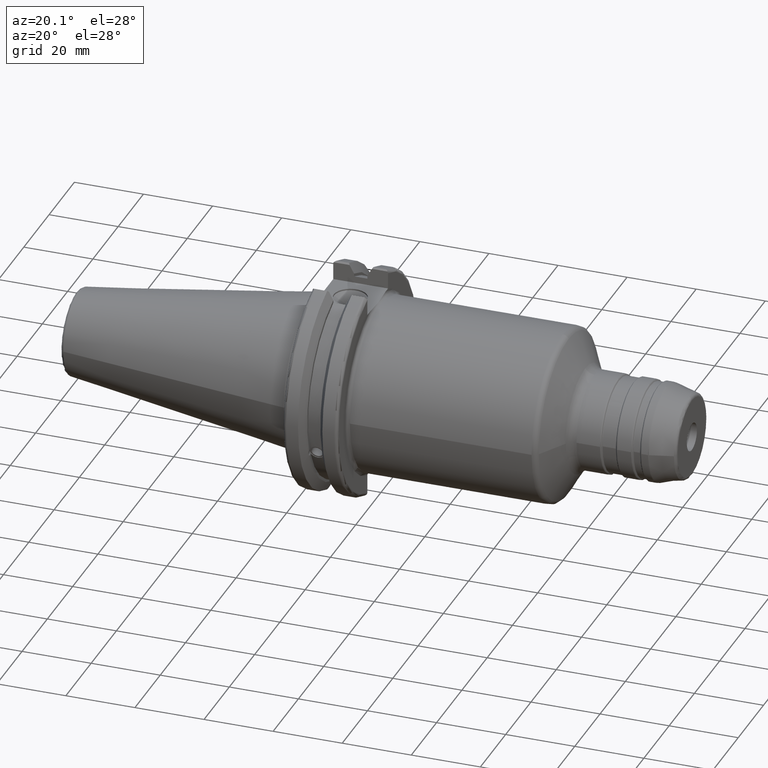
[diagram: clean part render]
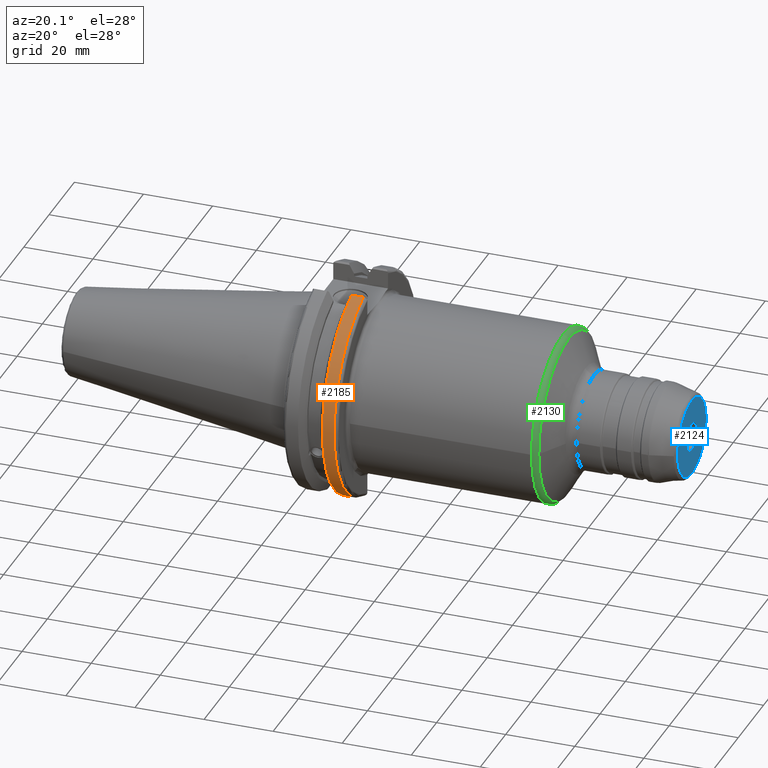
[diagram: same view with three faces highlighted in distinct colors, each labeled with its STEP entity id]
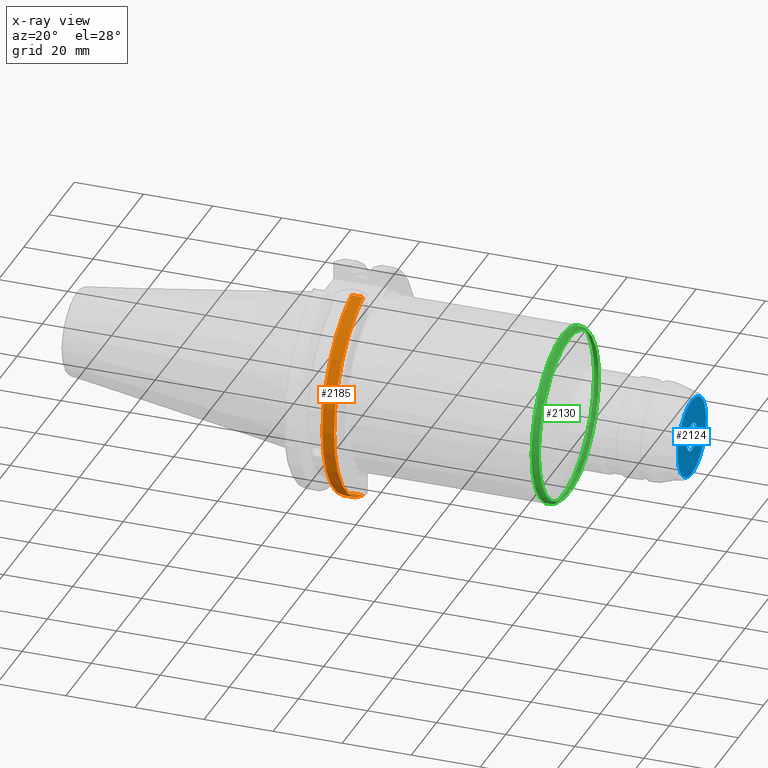
[diagram: x-ray of the same camera — body ghosted, the three highlighted faces saturated]
A machine part, auxiliary view with three faces highlighted in distinct colors.
The next image is the same camera in x-ray (body ghosted, the three faces saturated) — at least one of them is partly hidden behind the body in this view.
Their STEP definitions:

[orange] entity #2185 — the highlighted cylindrical surface (partial cylindrical patch) has radius 31.75 mm, axis along (1, 0, 0).
#256=FACE_OUTER_BOUND('',#377,.T.);
#377=EDGE_LOOP('',(#1945,#1946,#1947,#1948));
#487=LINE('',#4237,#583);
#488=LINE('',#4239,#584);
#583=VECTOR('',#3166,10.);
#584=VECTOR('',#3169,10.);
#712=CIRCLE('',#2403,31.75);
#747=CIRCLE('',#2472,31.75);
#913=VERTEX_POINT('',#3786);
#914=VERTEX_POINT('',#3790);
#986=VERTEX_POINT('',#4093);
#987=VERTEX_POINT('',#4102);
#1203=EDGE_CURVE('',#914,#913,#712,.T.);
#1301=EDGE_CURVE('',#986,#987,#747,.T.);
#1341=EDGE_CURVE('',#987,#913,#487,.T.);
#1342=EDGE_CURVE('',#914,#986,#488,.T.);
#1945=ORIENTED_EDGE('',*,*,#1301,.F.);
#1946=ORIENTED_EDGE('',*,*,#1342,.F.);
#1947=ORIENTED_EDGE('',*,*,#1203,.T.);
#1948=ORIENTED_EDGE('',*,*,#1341,.F.);
#2092=CYLINDRICAL_SURFACE('',#2498,31.75);
#2185=ADVANCED_FACE('',(#256),#2092,.T.);
#2403=AXIS2_PLACEMENT_3D('',#3791,#2928,#2929);
#2472=AXIS2_PLACEMENT_3D('',#4103,#3099,#3100);
#2498=AXIS2_PLACEMENT_3D('',#4238,#3167,#3168);
#2928=DIRECTION('center_axis',(1.,0.,0.));
#2929=DIRECTION('ref_axis',(0.,0.,-1.));
#3099=DIRECTION('center_axis',(1.,0.,0.));
#3100=DIRECTION('ref_axis',(0.,-1.,1.60812264967664E-16));
#3166=DIRECTION('',(-1.,0.,0.));
#3167=DIRECTION('center_axis',(1.,0.,0.));
#3168=DIRECTION('ref_axis',(0.,-1.,1.22464679914735E-16));
#3169=DIRECTION('',(1.,0.,0.));
#3786=CARTESIAN_POINT('',(14.6602667690756,-8.67204822802686,-30.5427254764662));
#3790=CARTESIAN_POINT('',(14.6602667690756,-8.67204822802685,30.5427254764662));
#3791=CARTESIAN_POINT('Origin',(14.6602667690756,0.,0.));
#4093=CARTESIAN_POINT('',(18.05,-8.67204822802685,30.5427254764662));
#4102=CARTESIAN_POINT('',(18.05,-8.67204822802686,-30.5427254764662));
#4103=CARTESIAN_POINT('Origin',(18.05,0.,0.));
#4237=CARTESIAN_POINT('',(16.8551333845378,-8.67204822802686,-30.5427254764662));
#4238=CARTESIAN_POINT('Origin',(16.8551333845378,0.,0.));
#4239=CARTESIAN_POINT('',(16.8551333845378,-8.67204822802685,30.5427254764662));

[blue] entity #2124 — the highlighted planar face has unit normal (1, 0, 0).
#49=PLANE('',#2334);
#104=FACE_BOUND('',#306,.T.);
#195=FACE_OUTER_BOUND('',#305,.T.);
#305=EDGE_LOOP('',(#1559,#1560));
#306=EDGE_LOOP('',(#1561,#1562));
#672=CIRCLE('',#2331,11.232673012021);
#674=CIRCLE('',#2333,11.232673012021);
#675=CIRCLE('',#2335,4.00000000000001);
#676=CIRCLE('',#2336,4.00000000000001);
#850=VERTEX_POINT('',#3518);
#851=VERTEX_POINT('',#3519);
#852=VERTEX_POINT('',#3524);
#853=VERTEX_POINT('',#3525);
#1120=EDGE_CURVE('',#850,#851,#672,.T.);
#1122=EDGE_CURVE('',#851,#850,#674,.T.);
#1123=EDGE_CURVE('',#852,#853,#675,.T.);
#1124=EDGE_CURVE('',#853,#852,#676,.T.);
#1559=ORIENTED_EDGE('',*,*,#1120,.F.);
#1560=ORIENTED_EDGE('',*,*,#1122,.F.);
#1561=ORIENTED_EDGE('',*,*,#1123,.F.);
#1562=ORIENTED_EDGE('',*,*,#1124,.F.);
#2124=ADVANCED_FACE('',(#195,#104),#49,.T.);
#2331=AXIS2_PLACEMENT_3D('',#3520,#2761,#2762);
#2333=AXIS2_PLACEMENT_3D('',#3522,#2765,#2766);
#2334=AXIS2_PLACEMENT_3D('',#3523,#2767,#2768);
#2335=AXIS2_PLACEMENT_3D('',#3526,#2769,#2770);
#2336=AXIS2_PLACEMENT_3D('',#3527,#2771,#2772);
#2761=DIRECTION('center_axis',(-1.,0.,0.));
#2762=DIRECTION('ref_axis',(0.,-1.,1.83697019872103E-16));
#2765=DIRECTION('center_axis',(-1.,0.,0.));
#2766=DIRECTION('ref_axis',(0.,-1.,1.83697019872103E-16));
#2767=DIRECTION('center_axis',(1.,0.,0.));
#2768=DIRECTION('ref_axis',(0.,0.,-1.));
#2769=DIRECTION('center_axis',(1.,0.,0.));
#2770=DIRECTION('ref_axis',(0.,0.,-1.));
#2771=DIRECTION('center_axis',(1.,0.,0.));
#2772=DIRECTION('ref_axis',(0.,0.,-1.));
#3518=CARTESIAN_POINT('',(110.,11.232673012021,-3.43901426251011E-15));
#3519=CARTESIAN_POINT('',(110.,-1.37560570500404E-15,11.232673012021));
#3520=CARTESIAN_POINT('Origin',(110.,0.,0.));
#3522=CARTESIAN_POINT('Origin',(110.,0.,0.));
#3523=CARTESIAN_POINT('Origin',(110.,4.00000000000001,0.));
#3524=CARTESIAN_POINT('',(110.,4.00000000000001,0.));
#3525=CARTESIAN_POINT('',(110.,-4.,-4.89858719658942E-16));
#3526=CARTESIAN_POINT('Origin',(110.,0.,0.));
#3527=CARTESIAN_POINT('Origin',(110.,0.,0.));

[green] entity #2130 — the highlighted toroidal blend (fillet) surface has major radius 22.75 mm and minor (blend) radius 2 mm.
#95=TOROIDAL_SURFACE('',#2357,22.75,2.);
#201=FACE_OUTER_BOUND('',#312,.T.);
#312=EDGE_LOOP('',(#1599,#1600,#1601,#1602,#1603,#1604,#1605,#1606));
#682=CIRCLE('',#2345,24.75);
#683=CIRCLE('',#2346,24.75);
#684=CIRCLE('',#2347,24.75);
#689=CIRCLE('',#2354,23.75);
#690=CIRCLE('',#2355,23.75);
#691=CIRCLE('',#2356,23.75);
#692=CIRCLE('',#2358,2.);
#864=VERTEX_POINT('',#3579);
#865=VERTEX_POINT('',#3580);
#866=VERTEX_POINT('',#3582);
#870=VERTEX_POINT('',#3613);
#871=VERTEX_POINT('',#3615);
#872=VERTEX_POINT('',#3617);
#1136=EDGE_CURVE('',#864,#865,#682,.T.);
#1137=EDGE_CURVE('',#866,#864,#683,.T.);
#1140=EDGE_CURVE('',#865,#866,#684,.T.);
#1146=EDGE_CURVE('',#871,#870,#689,.T.);
#1147=EDGE_CURVE('',#872,#871,#690,.T.);
#1148=EDGE_CURVE('',#870,#872,#691,.T.);
#1149=EDGE_CURVE('',#872,#865,#692,.T.);
#1599=ORIENTED_EDGE('',*,*,#1146,.T.);
#1600=ORIENTED_EDGE('',*,*,#1148,.T.);
#1601=ORIENTED_EDGE('',*,*,#1149,.T.);
#1602=ORIENTED_EDGE('',*,*,#1140,.T.);
#1603=ORIENTED_EDGE('',*,*,#1137,.T.);
#1604=ORIENTED_EDGE('',*,*,#1136,.T.);
#1605=ORIENTED_EDGE('',*,*,#1149,.F.);
#1606=ORIENTED_EDGE('',*,*,#1147,.T.);
#2130=ADVANCED_FACE('',(#201),#95,.T.);
#2345=AXIS2_PLACEMENT_3D('',#3581,#2792,#2793);
#2346=AXIS2_PLACEMENT_3D('',#3583,#2794,#2795);
#2347=AXIS2_PLACEMENT_3D('',#3603,#2797,#2798);
#2354=AXIS2_PLACEMENT_3D('',#3616,#2812,#2813);
#2355=AXIS2_PLACEMENT_3D('',#3618,#2814,#2815);
#2356=AXIS2_PLACEMENT_3D('',#3619,#2816,#2817);
#2357=AXIS2_PLACEMENT_3D('',#3620,#2818,#2819);
#2358=AXIS2_PLACEMENT_3D('',#3621,#2820,#2821);
#2792=DIRECTION('center_axis',(1.,0.,0.));
#2793=DIRECTION('ref_axis',(0.,-1.,1.83697019872103E-16));
#2794=DIRECTION('center_axis',(1.,0.,0.));
#2795=DIRECTION('ref_axis',(0.,-1.,1.83697019872103E-16));
#2797=DIRECTION('center_axis',(1.,0.,0.));
#2798=DIRECTION('ref_axis',(0.,-1.,1.83697019872103E-16));
#2812=DIRECTION('center_axis',(-1.,0.,0.));
#2813=DIRECTION('ref_axis',(0.,-1.,3.06161699786838E-17));
#2814=DIRECTION('center_axis',(-1.,0.,0.));
#2815=DIRECTION('ref_axis',(0.,-1.,3.06161699786838E-17));
#2816=DIRECTION('center_axis',(-1.,0.,0.));
#2817=DIRECTION('ref_axis',(0.,-1.,3.06161699786838E-17));
#2818=DIRECTION('center_axis',(1.,0.,0.));
#2819=DIRECTION('ref_axis',(0.,0.,-1.));
#2820=DIRECTION('center_axis',(0.,-1.,-1.22464679914735E-16));
#2821=DIRECTION('ref_axis',(0.,-1.22464679914735E-16,1.));
#3579=CARTESIAN_POINT('',(72.6387840678323,24.75,-1.51550041394485E-15));
#3580=CARTESIAN_POINT('',(72.6387840678323,-3.0310008278897E-15,24.75));
#3581=CARTESIAN_POINT('Origin',(72.6387840678323,0.,0.));
#3582=CARTESIAN_POINT('',(72.6387840678323,-24.75,-3.0310008278897E-15));
#3583=CARTESIAN_POINT('Origin',(72.6387840678323,0.,0.));
#3603=CARTESIAN_POINT('Origin',(72.6387840678323,0.,0.));
#3613=CARTESIAN_POINT('',(74.3708348754011,-23.75,-2.90853614797496E-15));
#3615=CARTESIAN_POINT('',(74.3708348754012,23.75,-7.27134036993741E-15));
#3616=CARTESIAN_POINT('Origin',(74.3708348754012,0.,-3.6356701849687E-15));
#3617=CARTESIAN_POINT('',(74.3708348754011,-2.90853614797496E-15,23.75));
#3618=CARTESIAN_POINT('Origin',(74.3708348754012,0.,-3.6356701849687E-15));
#3619=CARTESIAN_POINT('Origin',(74.3708348754012,0.,-3.6356701849687E-15));
#3620=CARTESIAN_POINT('Origin',(72.6387840678323,0.,0.));
#3621=CARTESIAN_POINT('Origin',(72.6387840678323,-2.78607146806023E-15,
22.75));